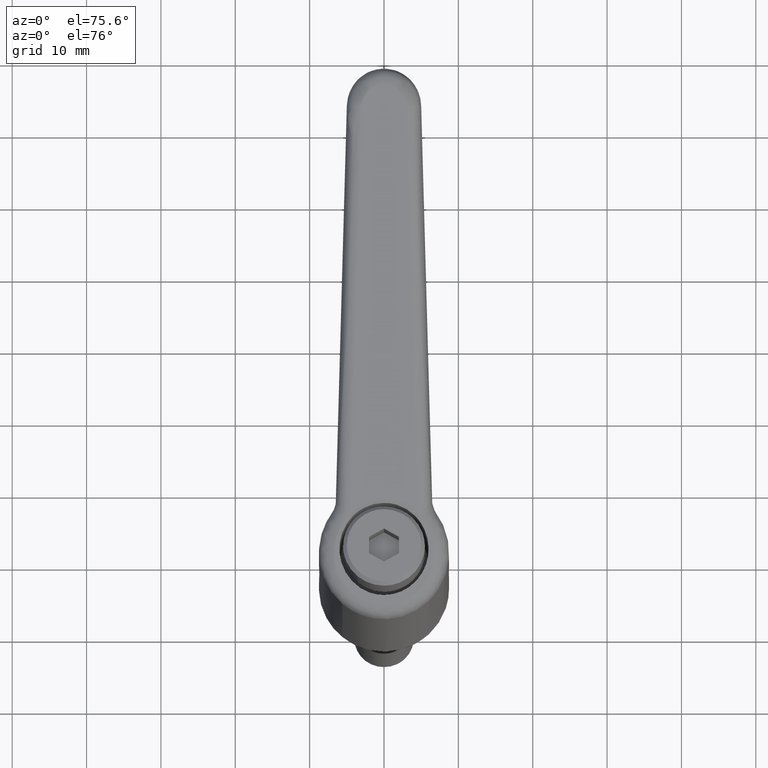
[diagram: clean part render]
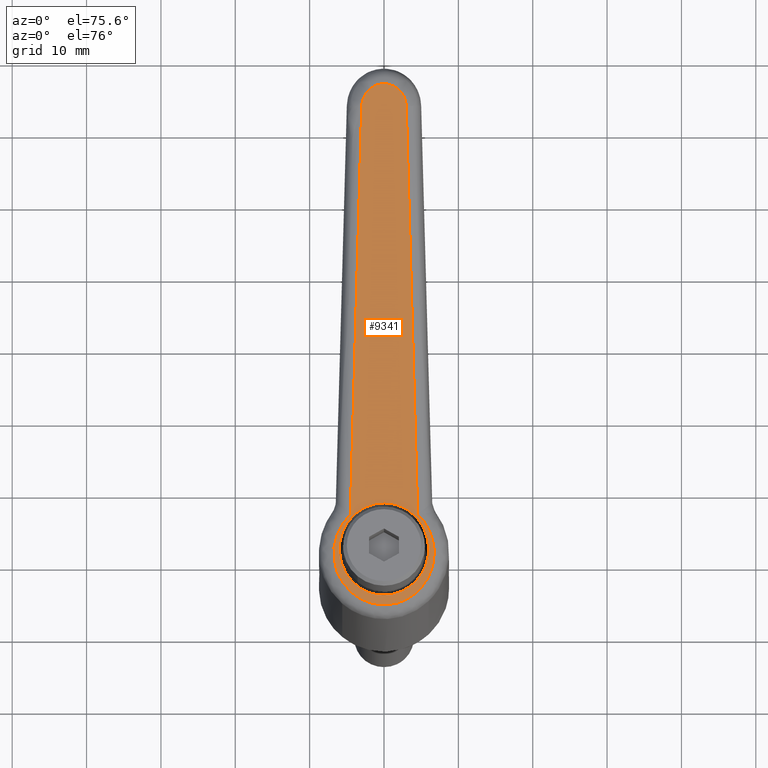
[diagram: same view with one face highlighted and labeled with its STEP entity id]
A machine part, auxiliary view. The second image highlights one B-rep face of the part: STEP entity #9341.
In plain terms, the highlighted face is a freeform B-spline surface patch.
Its self-contained STEP definition (entity closure, byte-faithful):
#1877=CARTESIAN_POINT('',(4.423664020860301,4.053541245694445,30.087054631823200));
#1878=VERTEX_POINT('',#1877);
#1884=CARTESIAN_POINT('',(-6.000000000000002,0.0,27.326781317271649));
#1885=VERTEX_POINT('',#1884);
#1886=CARTESIAN_POINT('',(4.423664020860301,4.053541245694445,30.087054631823200));
#1887=CARTESIAN_POINT('',(2.640063185350216,6.000000000000001,29.614742229944454));
#1888=CARTESIAN_POINT('',(1.102146E-015,6.0,28.915631442732899));
#1889=CARTESIAN_POINT('',(-6.000000000000001,6.0,27.326781317271653));
#1890=CARTESIAN_POINT('',(-6.000000000000002,0.0,27.326781317271649));
#1898=(BOUNDED_CURVE()B_SPLINE_CURVE(2,(#1886,#1887,#1888,#1889,#1890),.UNSPECIFIED.,.F.,.U.)B_SPLINE_CURVE_WITH_KNOTS((3,2,3),(0.618415209084105,0.750000000000000,1.0),.UNSPECIFIED.)CURVE()GEOMETRIC_REPRESENTATION_ITEM()RATIONAL_B_SPLINE_CURVE((0.853959780837951,0.845838828166993,1.0,0.707106781186547,1.0))REPRESENTATION_ITEM(''));
#1899=EDGE_CURVE('',#1878,#1885,#1898,.T.);
#1901=CARTESIAN_POINT('',(4.299905898495933,-4.184591887398325,30.054279821406379));
#1902=VERTEX_POINT('',#1901);
#1903=CARTESIAN_POINT('',(-6.000000000000002,0.0,27.326781317271649));
#1904=CARTESIAN_POINT('',(-5.999999937335361,-5.999999935608527,27.326780830766882));
#1905=CARTESIAN_POINT('',(0.000000227722623,-5.999999766002083,28.915629674779840));
#1906=CARTESIAN_POINT('',(2.533183056483114,-5.999999694394730,29.586437091184418));
#1907=CARTESIAN_POINT('',(4.299905898495933,-4.184591887398325,30.054279821406379));
#1915=(BOUNDED_CURVE()B_SPLINE_CURVE(2,(#1903,#1904,#1905,#1906,#1907),.UNSPECIFIED.,.F.,.U.)B_SPLINE_CURVE_WITH_KNOTS((3,2,3),(0.0,0.250000000000000,0.377050638416147),.UNSPECIFIED.)CURVE()GEOMETRIC_REPRESENTATION_ITEM()RATIONAL_B_SPLINE_CURVE((1.0,0.707106781186547,1.0,0.851150918247962,0.853592803409954))REPRESENTATION_ITEM(''));
#1916=EDGE_CURVE('',#1885,#1902,#1915,.T.);
#1953=CARTESIAN_POINT('',(6.000000000000002,-7.347638E-016,30.504481568194151));
#1954=VERTEX_POINT('',#1953);
#1955=CARTESIAN_POINT('',(4.299905898495933,-4.184591887398325,30.054279821406379));
#1956=CARTESIAN_POINT('',(6.000000161917037,-2.437648719488541,30.504480311130997));
#1957=CARTESIAN_POINT('',(6.000000000000002,-7.347638E-016,30.504481568194151));
#1965=(BOUNDED_CURVE()B_SPLINE_CURVE(2,(#1955,#1956,#1957),.UNSPECIFIED.,.F.,.U.)B_SPLINE_CURVE_WITH_KNOTS((3,3),(0.377050638416147,0.500000000000000),.UNSPECIFIED.)CURVE()GEOMETRIC_REPRESENTATION_ITEM()RATIONAL_B_SPLINE_CURVE((0.853592803409954,0.855955862938585,1.0))REPRESENTATION_ITEM(''));
#1966=EDGE_CURVE('',#1902,#1954,#1965,.T.);
#1968=CARTESIAN_POINT('',(6.000000000000002,-7.347638E-016,30.504481568194151));
#1969=CARTESIAN_POINT('',(6.000000000000002,2.333272391118677,30.504481568194141));
#1970=CARTESIAN_POINT('',(4.423664020860301,4.053541245694445,30.087054631823204));
#1978=(BOUNDED_CURVE()B_SPLINE_CURVE(2,(#1968,#1969,#1970),.UNSPECIFIED.,.F.,.U.)B_SPLINE_CURVE_WITH_KNOTS((3,3),(0.500000000000000,0.618415209084104),.UNSPECIFIED.)CURVE()GEOMETRIC_REPRESENTATION_ITEM()RATIONAL_B_SPLINE_CURVE((1.0,0.861267953019555,0.853959780837951))REPRESENTATION_ITEM(''));
#1979=EDGE_CURVE('',#1954,#1878,#1978,.T.);
#6350=CARTESIAN_POINT('',(4.498035217750171,4.523532370376100,30.106748746074850));
#6351=VERTEX_POINT('',#6350);
#6594=CARTESIAN_POINT('',(4.498035217750171,-4.523532370376100,30.106748746074850));
#6595=VERTEX_POINT('',#6594);
#6707=CARTESIAN_POINT('',(57.574177916736303,-2.998765917262975,44.161754743788748));
#6708=VERTEX_POINT('',#6707);
#6709=CARTESIAN_POINT('',(4.498035217750171,-4.523532370376100,30.106748746074850));
#6710=CARTESIAN_POINT('',(57.574177916736303,-2.998765917262975,44.161754743788748));
#6711=QUASI_UNIFORM_CURVE('',1,(#6709,#6710),.UNSPECIFIED.,.F.,.U.);
#6712=EDGE_CURVE('',#6595,#6708,#6711,.T.);
#8222=CARTESIAN_POINT('',(4.498035217750171,4.523532370376100,30.106748746074850));
#8223=CARTESIAN_POINT('',(1.391389042807188,7.964275816364706,29.284082885271129));
#8224=CARTESIAN_POINT('',(-2.935290608949344,6.300001467443412,28.138341967350460));
#8225=CARTESIAN_POINT('',(-7.261970260705871,4.635727118522119,26.992601049429794));
#8226=CARTESIAN_POINT('',(-7.261970260705871,-1.033719E-014,26.992601049429801));
#8227=CARTESIAN_POINT('',(-7.261970260705871,-4.635727118522133,26.992601049429794));
#8228=CARTESIAN_POINT('',(-2.935290608949325,-6.300001467443418,28.138341967350470));
#8229=CARTESIAN_POINT('',(1.391389042807214,-7.964275816364701,29.284082885271129));
#8230=CARTESIAN_POINT('',(4.498035217750171,-4.523532370376100,30.106748746074850));
#8238=(BOUNDED_CURVE()B_SPLINE_CURVE(2,(#8222,#8223,#8224,#8225,#8226,#8227,#8228,#8229,#8230),.UNSPECIFIED.,.F.,.U.)B_SPLINE_CURVE_WITH_KNOTS((3,2,2,2,3),(0.0,0.250000000000000,0.500000000000000,0.750000000000000,1.0),.UNSPECIFIED.)CURVE()GEOMETRIC_REPRESENTATION_ITEM()RATIONAL_B_SPLINE_CURVE((1.0,0.824321060619584,1.0,0.824321060619584,1.0,0.824321060619584,1.0,0.824321060619584,1.0))REPRESENTATION_ITEM(''));
#8239=EDGE_CURVE('',#6351,#6595,#8238,.T.);
#8998=CARTESIAN_POINT('',(57.574177750936101,2.998759741142085,44.161754699883453));
#8999=VERTEX_POINT('',#8998);
#9012=CARTESIAN_POINT('',(57.574177916736311,-2.998765917262975,44.161754743788812));
#9013=CARTESIAN_POINT('',(60.488029819880111,-2.915057052878240,44.933367070769727));
#9014=CARTESIAN_POINT('',(60.488029739294113,-0.000003007507666,44.933367049429869));
#9015=CARTESIAN_POINT('',(60.488029658708072,2.915051037862905,44.933367028090032));
#9016=CARTESIAN_POINT('',(57.574177750936073,2.998759741142085,44.161754699883510));
#9024=(BOUNDED_CURVE()B_SPLINE_CURVE(2,(#9012,#9013,#9014,#9015,#9016),.UNSPECIFIED.,.F.,.U.)B_SPLINE_CURVE_WITH_KNOTS((3,2,3),(0.0,0.500000000000000,1.0),.UNSPECIFIED.)CURVE()GEOMETRIC_REPRESENTATION_ITEM()RATIONAL_B_SPLINE_CURVE((1.0,0.717187573621444,1.0,0.717187573621444,1.0))REPRESENTATION_ITEM(''));
#9025=EDGE_CURVE('',#6708,#8999,#9024,.T.);
#9066=CARTESIAN_POINT('',(57.574177750936101,2.998759741142085,44.161754699883453));
#9067=CARTESIAN_POINT('',(4.498035217750171,4.523532370376100,30.106748746074850));
#9068=QUASI_UNIFORM_CURVE('',1,(#9066,#9067),.UNSPECIFIED.,.F.,.U.);
#9069=EDGE_CURVE('',#8999,#6351,#9068,.T.);
#9324=CARTESIAN_POINT('',(63.872142743969867,-7.418693754478098,45.829508444772152));
#9325=CARTESIAN_POINT('',(-10.646084476846150,-7.418693754478098,26.096459333281611));
#9326=CARTESIAN_POINT('',(63.872142743969867,7.418693404964846,45.829508444772152));
#9327=CARTESIAN_POINT('',(-10.646084476846150,7.418693404964846,26.096459333281611));
#9328=B_SPLINE_SURFACE_WITH_KNOTS('',1,1,((#9324,#9326),(#9325,#9327)),.UNSPECIFIED.,.F.,.F.,.U.,(2,2),(2,2),(0.0,77.086700638759083),(0.0,14.837387159442940),.UNSPECIFIED.);
#9329=ORIENTED_EDGE('',*,*,#8239,.T.);
#9330=ORIENTED_EDGE('',*,*,#6712,.T.);
#9331=ORIENTED_EDGE('',*,*,#9025,.T.);
#9332=ORIENTED_EDGE('',*,*,#9069,.T.);
#9333=EDGE_LOOP('',(#9329,#9330,#9331,#9332));
#9334=FACE_OUTER_BOUND('',#9333,.T.);
#9335=ORIENTED_EDGE('',*,*,#1979,.F.);
#9336=ORIENTED_EDGE('',*,*,#1966,.F.);
#9337=ORIENTED_EDGE('',*,*,#1916,.F.);
#9338=ORIENTED_EDGE('',*,*,#1899,.F.);
#9339=EDGE_LOOP('',(#9335,#9336,#9337,#9338));
#9340=FACE_BOUND('',#9339,.T.);
#9341=ADVANCED_FACE('',(#9334,#9340),#9328,.F.);